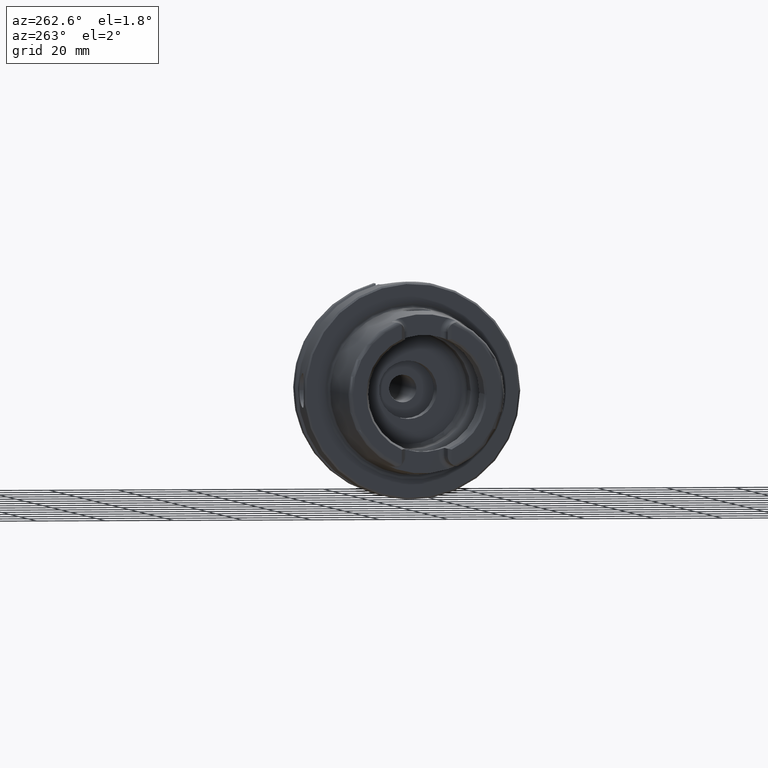
[diagram: clean part render]
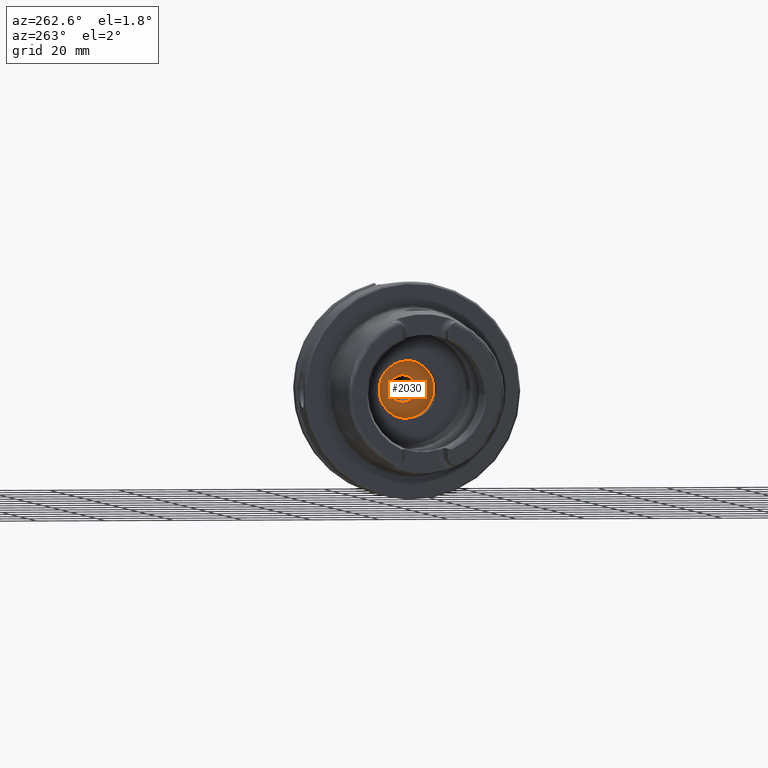
[diagram: same view with one face highlighted and labeled with its STEP entity id]
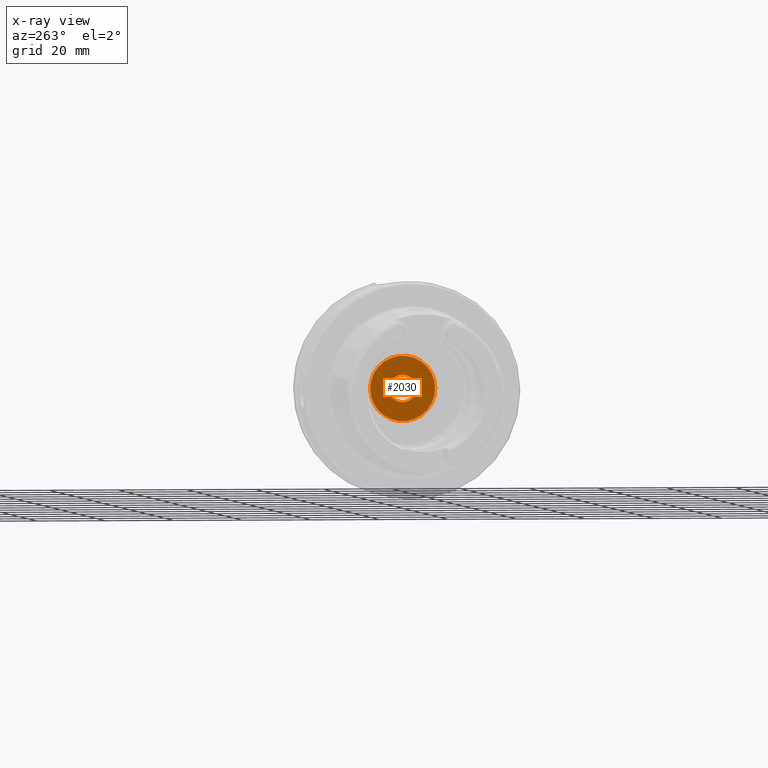
[diagram: x-ray of the same camera — body ghosted, the highlighted face saturated]
A machine part, auxiliary view. The second image highlights one B-rep face of the part: STEP entity #2030.
The next image is the same camera in x-ray: the body ghosted, the highlighted face saturated — about 0% of this face is hidden behind the body in this view.
In plain terms, the highlighted planar face has unit normal (1, 0, 0).
Its self-contained STEP definition (entity closure, byte-faithful):
#138=FACE_BOUND('',#640,.T.);
#180=PLANE('',#2280);
#516=FACE_OUTER_BOUND('',#639,.T.);
#639=EDGE_LOOP('',(#1847));
#640=EDGE_LOOP('',(#1848));
#669=CIRCLE('',#2085,4.);
#762=CIRCLE('',#2281,9.5);
#798=VERTEX_POINT('',#2957);
#965=VERTEX_POINT('',#4309);
#1002=EDGE_CURVE('',#798,#798,#669,.T.);
#1264=EDGE_CURVE('',#965,#965,#762,.T.);
#1847=ORIENTED_EDGE('',*,*,#1264,.T.);
#1848=ORIENTED_EDGE('',*,*,#1002,.T.);
#2030=ADVANCED_FACE('',(#516,#138),#180,.F.);
#2085=AXIS2_PLACEMENT_3D('',#2958,#2360,#2361);
#2280=AXIS2_PLACEMENT_3D('',#4308,#2839,#2840);
#2281=AXIS2_PLACEMENT_3D('',#4310,#2841,#2842);
#2360=DIRECTION('center_axis',(1.,0.,0.));
#2361=DIRECTION('ref_axis',(0.,0.,1.));
#2839=DIRECTION('center_axis',(1.,0.,0.));
#2840=DIRECTION('ref_axis',(0.,0.,-1.));
#2841=DIRECTION('center_axis',(-1.,0.,0.));
#2842=DIRECTION('ref_axis',(0.,0.,1.));
#2957=CARTESIAN_POINT('',(22.,4.89858719658941E-16,-4.));
#2958=CARTESIAN_POINT('Origin',(22.,0.,0.));
#4308=CARTESIAN_POINT('Origin',(22.,9.5,0.));
#4309=CARTESIAN_POINT('',(22.,-9.5,1.16341445918999E-15));
#4310=CARTESIAN_POINT('Origin',(22.,0.,0.));